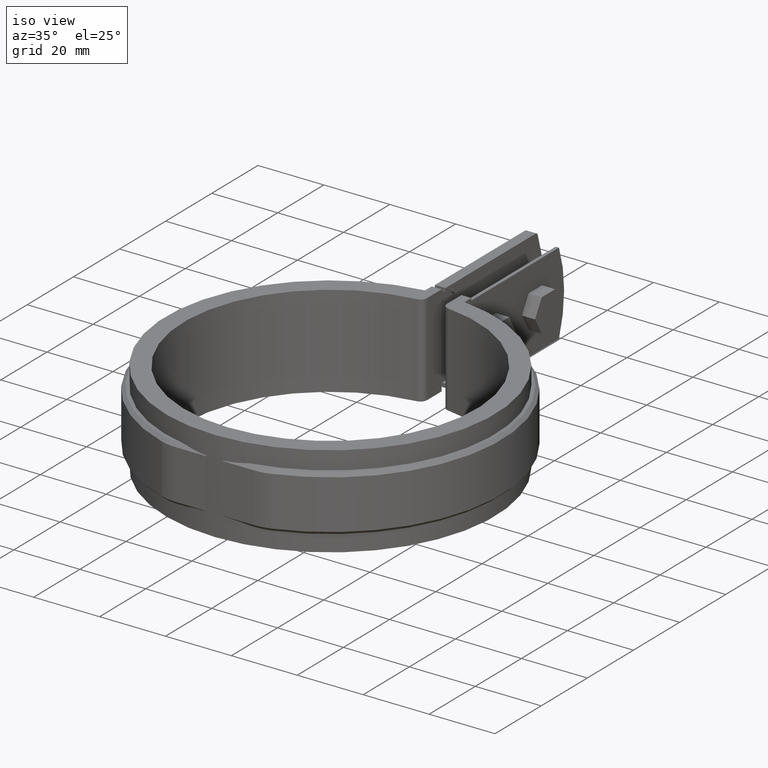
[diagram: clean part render]
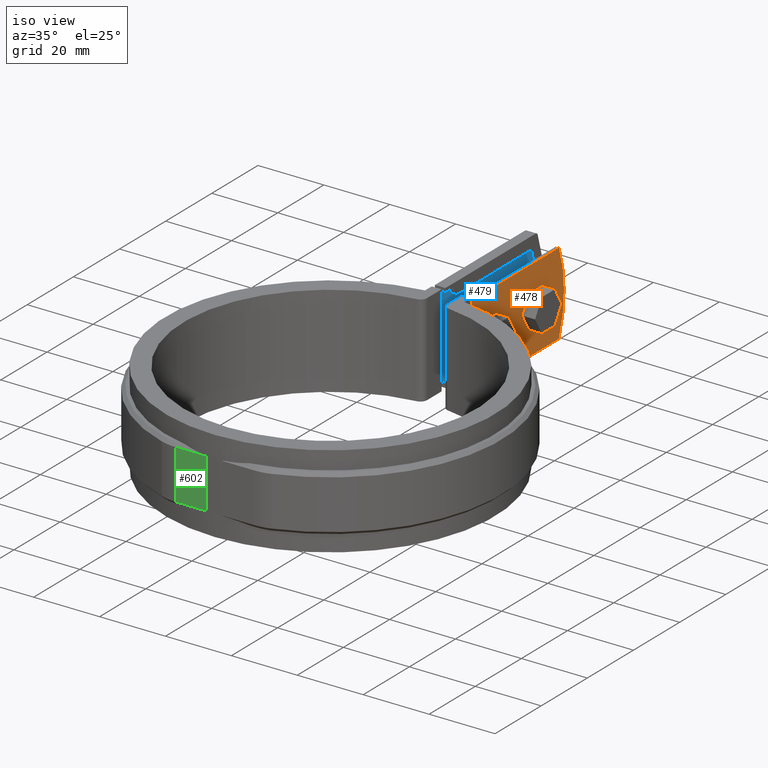
[diagram: same view with three faces highlighted in distinct colors, each labeled with its STEP entity id]
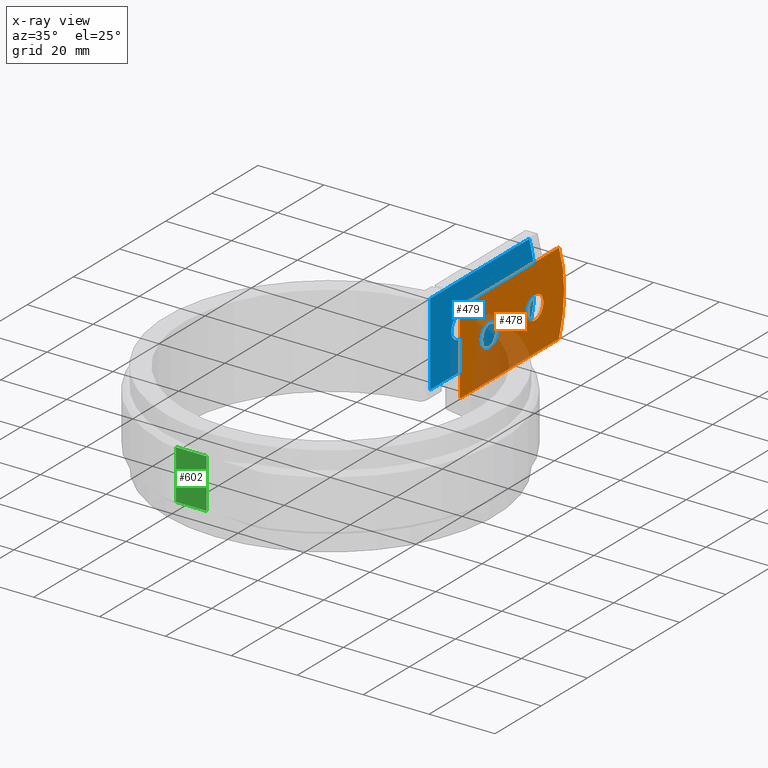
[diagram: x-ray of the same camera — body ghosted, the three highlighted faces saturated]
A machine part, iso view with three faces highlighted in distinct colors.
The next image is the same camera in x-ray (body ghosted, the three faces saturated) — at least one of them is partly hidden behind the body in this view.
Their STEP definitions:

[orange] entity #478 — the highlighted planar face has unit normal (1, 0, 0).
#478 = ADVANCED_FACE( '', ( #877, #878, #879 ), #880, .T. );
#877 = FACE_OUTER_BOUND( '', #1815, .T. );
#878 = FACE_BOUND( '', #1816, .T. );
#879 = FACE_BOUND( '', #1817, .T. );
#880 = PLANE( '', #1818 );
#1815 = EDGE_LOOP( '', ( #3569, #3570, #3571, #3572, #3573, #3574 ) );
#1816 = EDGE_LOOP( '', ( #3575 ) );
#1817 = EDGE_LOOP( '', ( #3576 ) );
#1818 = AXIS2_PLACEMENT_3D( '', #3577, #3578, #3579 );
#3569 = ORIENTED_EDGE( '', *, *, #7652, .F. );
#3570 = ORIENTED_EDGE( '', *, *, #7653, .F. );
#3571 = ORIENTED_EDGE( '', *, *, #7654, .T. );
#3572 = ORIENTED_EDGE( '', *, *, #7655, .T. );
#3573 = ORIENTED_EDGE( '', *, *, #7656, .F. );
#3574 = ORIENTED_EDGE( '', *, *, #7637, .F. );
#3575 = ORIENTED_EDGE( '', *, *, #7657, .T. );
#3576 = ORIENTED_EDGE( '', *, *, #7658, .T. );
#3577 = CARTESIAN_POINT( '', ( 5.00000000000000, 49.0025509540065, -12.5000000000000 ) );
#3578 = DIRECTION( '', ( 1.00000000000000, 6.16283340149655E-017, 0.000000000000000 ) );
#3579 = DIRECTION( '', ( 6.16283340149655E-017, -1.00000000000000, 0.000000000000000 ) );
#7637 = EDGE_CURVE( '', #8719, #8721, #8722, .T. );
#7652 = EDGE_CURVE( '', #8736, #8719, #8738, .T. );
#7653 = EDGE_CURVE( '', #8739, #8736, #8740, .T. );
#7654 = EDGE_CURVE( '', #8739, #8741, #8742, .T. );
#7655 = EDGE_CURVE( '', #8741, #8743, #8744, .T. );
#7656 = EDGE_CURVE( '', #8721, #8743, #8745, .T. );
#7657 = EDGE_CURVE( '', #8746, #8746, #8747, .F. );
#7658 = EDGE_CURVE( '', #8748, #8748, #8749, .F. );
#8719 = VERTEX_POINT( '', #11253 );
#8721 = VERTEX_POINT( '', #11270 );
#8722 = LINE( '', #11271, #11272 );
#8736 = VERTEX_POINT( '', #11361 );
#8738 = B_SPLINE_CURVE_WITH_KNOTS( '', 3, ( #11378, #11379, #11380, #11381, #11382, #11383, #11384, #11385 ), .UNSPECIFIED., .F., .F., ( 4, 2, 2, 4 ), ( 2.16840434497101E-019, 0.00168457269475964, 0.00252685904213946, 0.00336914538951927 ), .UNSPECIFIED. );
#8739 = VERTEX_POINT( '', #11386 );
#8740 = LINE( '', #11387, #11388 );
#8741 = VERTEX_POINT( '', #11389 );
#8742 = LINE( '', #11390, #11391 );
#8743 = VERTEX_POINT( '', #11392 );
#8744 = CIRCLE( '', #11393, 36.0000000000000 );
#8745 = LINE( '', #11394, #11395 );
#8746 = VERTEX_POINT( '', #11396 );
#8747 = CIRCLE( '', #11397, 3.50000000000000 );
#8748 = VERTEX_POINT( '', #11398 );
#8749 = CIRCLE( '', #11399, 3.50000000000000 );
#11253 = CARTESIAN_POINT( '', ( 5.00000000000000, 49.0025509540065, 1.67294878144052 ) );
#11270 = CARTESIAN_POINT( '', ( 5.00000000000000, 49.0025509540065, 12.5000000000000 ) );
#11271 = CARTESIAN_POINT( '', ( 5.00000000000000, 49.0025509540065, -12.5000000000000 ) );
#11272 = VECTOR( '', #14767, 1000.00000000000 );
#11361 = CARTESIAN_POINT( '', ( 5.00000000000000, 49.0025509540065, -1.67294878143787 ) );
#11378 = CARTESIAN_POINT( '', ( 5.00000000000000, 49.0025509540065, -1.67294878143787 ) );
#11379 = CARTESIAN_POINT( '', ( 5.00000000000000, 49.1629272890020, -1.12656002922780 ) );
#11380 = CARTESIAN_POINT( '', ( 4.99999999999999, 49.2451496729051, -0.570860486804298 ) );
#11381 = CARTESIAN_POINT( '', ( 4.99999999999999, 49.2459548465781, 0.277286121426488 ) );
#11382 = CARTESIAN_POINT( '', ( 5.00000000000000, 49.2249843333288, 0.562787795114989 ) );
#11383 = CARTESIAN_POINT( '', ( 5.00000000000001, 49.1433421235272, 1.12294091024393 ) );
#11384 = CARTESIAN_POINT( '', ( 4.99999999999991, 49.0827754315862, 1.39963069992494 ) );
#11385 = CARTESIAN_POINT( '', ( 4.99999999999991, 49.0025509540065, 1.67294878144042 ) );
#11386 = CARTESIAN_POINT( '', ( 5.00000000000000, 49.0025509540065, -12.5000000000000 ) );
#11387 = CARTESIAN_POINT( '', ( 5.00000000000000, 49.0025509540065, -12.5000000000000 ) );
#11388 = VECTOR( '', #14780, 1000.00000000000 );
#11389 = CARTESIAN_POINT( '', ( 5.00000000000000, 91.9562927180176, -12.5000000000000 ) );
#11390 = CARTESIAN_POINT( '', ( 5.00000000000000, 49.0025509540065, -12.5000000000000 ) );
#11391 = VECTOR( '', #14781, 1000.00000000000 );
#11392 = CARTESIAN_POINT( '', ( 5.00000000000000, 91.9562927180175, 12.5000000000000 ) );
#11393 = AXIS2_PLACEMENT_3D( '', #14782, #14783, #14784 );
#11394 = CARTESIAN_POINT( '', ( 5.00000000000000, 49.0025509540065, 12.5000000000000 ) );
#11395 = VECTOR( '', #14785, 1000.00000000000 );
#11396 = CARTESIAN_POINT( '', ( 5.00000000000000, 85.1961090692280, -1.73472347597681E-015 ) );
#11397 = AXIS2_PLACEMENT_3D( '', #14786, #14787, #14788 );
#11398 = CARTESIAN_POINT( '', ( 5.00000000000000, 65.1961090692280, -1.73472347597681E-015 ) );
#11399 = AXIS2_PLACEMENT_3D( '', #14789, #14790, #14791 );
#14767 = DIRECTION( '', ( 0.000000000000000, 0.000000000000000, 1.00000000000000 ) );
#14780 = DIRECTION( '', ( 0.000000000000000, 0.000000000000000, 1.00000000000000 ) );
#14781 = DIRECTION( '', ( -6.16283340149655E-017, 1.00000000000000, 0.000000000000000 ) );
#14782 = CARTESIAN_POINT( '', ( 5.00000000000000, 58.1961090692280, 0.000000000000000 ) );
#14783 = DIRECTION( '', ( 1.00000000000000, 6.16283340149655E-017, 0.000000000000000 ) );
#14784 = DIRECTION( '', ( -6.16283340149655E-017, 1.00000000000000, 0.000000000000000 ) );
#14785 = DIRECTION( '', ( -6.16283340149655E-017, 1.00000000000000, 0.000000000000000 ) );
#14786 = CARTESIAN_POINT( '', ( 5.00000000000000, 81.6961090692280, -1.73472347597681E-015 ) );
#14787 = DIRECTION( '', ( 1.00000000000000, 6.16283340149655E-017, 0.000000000000000 ) );
#14788 = DIRECTION( '', ( -6.16283340149655E-017, 1.00000000000000, 0.000000000000000 ) );
#14789 = CARTESIAN_POINT( '', ( 5.00000000000000, 61.6961090692280, -1.73472347597681E-015 ) );
#14790 = DIRECTION( '', ( 1.00000000000000, 6.16283340149655E-017, 0.000000000000000 ) );
#14791 = DIRECTION( '', ( -6.16283340149655E-017, 1.00000000000000, 0.000000000000000 ) );

[blue] entity #479 — the highlighted planar face has unit normal (1, -0, 0).
#479 = ADVANCED_FACE( '', ( #881, #882, #883 ), #884, .T. );
#881 = FACE_OUTER_BOUND( '', #1819, .T. );
#882 = FACE_BOUND( '', #1820, .T. );
#883 = FACE_BOUND( '', #1821, .T. );
#884 = PLANE( '', #1822 );
#1819 = EDGE_LOOP( '', ( #3580, #3581, #3582, #3583 ) );
#1820 = EDGE_LOOP( '', ( #3584 ) );
#1821 = EDGE_LOOP( '', ( #3585 ) );
#1822 = AXIS2_PLACEMENT_3D( '', #3586, #3587, #3588 );
#3580 = ORIENTED_EDGE( '', *, *, #7659, .F. );
#3581 = ORIENTED_EDGE( '', *, *, #7660, .F. );
#3582 = ORIENTED_EDGE( '', *, *, #7661, .T. );
#3583 = ORIENTED_EDGE( '', *, *, #7662, .T. );
#3584 = ORIENTED_EDGE( '', *, *, #7663, .T. );
#3585 = ORIENTED_EDGE( '', *, *, #7664, .T. );
#3586 = CARTESIAN_POINT( '', ( -4.00000000000000, 49.0025509540065, -12.5000000000000 ) );
#3587 = DIRECTION( '', ( 1.00000000000000, -6.16283340149655E-017, 0.000000000000000 ) );
#3588 = DIRECTION( '', ( -6.16283340149655E-017, -1.00000000000000, 0.000000000000000 ) );
#7659 = EDGE_CURVE( '', #8750, #8751, #8752, .T. );
#7660 = EDGE_CURVE( '', #8753, #8750, #8754, .T. );
#7661 = EDGE_CURVE( '', #8753, #8755, #8756, .T. );
#7662 = EDGE_CURVE( '', #8755, #8751, #8757, .T. );
#7663 = EDGE_CURVE( '', #8758, #8758, #8759, .F. );
#7664 = EDGE_CURVE( '', #8760, #8760, #8761, .F. );
#8750 = VERTEX_POINT( '', #11400 );
#8751 = VERTEX_POINT( '', #11401 );
#8752 = LINE( '', #11402, #11403 );
#8753 = VERTEX_POINT( '', #11404 );
#8754 = LINE( '', #11405, #11406 );
#8755 = VERTEX_POINT( '', #11407 );
#8756 = LINE( '', #11408, #11409 );
#8757 = CIRCLE( '', #11410, 36.0000000000000 );
#8758 = VERTEX_POINT( '', #11411 );
#8759 = CIRCLE( '', #11412, 3.50000000000000 );
#8760 = VERTEX_POINT( '', #11413 );
#8761 = CIRCLE( '', #11414, 3.50000000000000 );
#11400 = CARTESIAN_POINT( '', ( -4.00000000000000, 49.0025509540065, 12.5000000000000 ) );
#11401 = CARTESIAN_POINT( '', ( -3.99999999999999, 91.9562927180175, 12.5000000000000 ) );
#11402 = CARTESIAN_POINT( '', ( -4.00000000000000, 49.0025509540065, 12.5000000000000 ) );
#11403 = VECTOR( '', #14792, 1000.00000000000 );
#11404 = CARTESIAN_POINT( '', ( -4.00000000000000, 49.0025509540065, -12.5000000000000 ) );
#11405 = CARTESIAN_POINT( '', ( -4.00000000000000, 49.0025509540065, -12.5000000000000 ) );
#11406 = VECTOR( '', #14793, 1000.00000000000 );
#11407 = CARTESIAN_POINT( '', ( -3.99999999999999, 91.9562927180176, -12.5000000000000 ) );
#11408 = CARTESIAN_POINT( '', ( -4.00000000000000, 49.0025509540065, -12.5000000000000 ) );
#11409 = VECTOR( '', #14794, 1000.00000000000 );
#11410 = AXIS2_PLACEMENT_3D( '', #14795, #14796, #14797 );
#11411 = CARTESIAN_POINT( '', ( -4.00000000000000, 65.1961090692280, -1.73472347597681E-015 ) );
#11412 = AXIS2_PLACEMENT_3D( '', #14798, #14799, #14800 );
#11413 = CARTESIAN_POINT( '', ( -4.00000000000000, 85.1961090692280, -1.73472347597681E-015 ) );
#11414 = AXIS2_PLACEMENT_3D( '', #14801, #14802, #14803 );
#14792 = DIRECTION( '', ( 6.16283340149655E-017, 1.00000000000000, 0.000000000000000 ) );
#14793 = DIRECTION( '', ( 0.000000000000000, 0.000000000000000, 1.00000000000000 ) );
#14794 = DIRECTION( '', ( 6.16283340149655E-017, 1.00000000000000, 0.000000000000000 ) );
#14795 = CARTESIAN_POINT( '', ( -4.00000000000000, 58.1961090692280, 0.000000000000000 ) );
#14796 = DIRECTION( '', ( 1.00000000000000, -6.16283340149655E-017, 0.000000000000000 ) );
#14797 = DIRECTION( '', ( 6.16283340149655E-017, 1.00000000000000, 0.000000000000000 ) );
#14798 = CARTESIAN_POINT( '', ( -4.00000000000000, 61.6961090692280, -1.73472347597681E-015 ) );
#14799 = DIRECTION( '', ( 1.00000000000000, -6.16283340149655E-017, 0.000000000000000 ) );
#14800 = DIRECTION( '', ( 6.16283340149655E-017, 1.00000000000000, 0.000000000000000 ) );
#14801 = CARTESIAN_POINT( '', ( -4.00000000000000, 81.6961090692280, -1.73472347597681E-015 ) );
#14802 = DIRECTION( '', ( 1.00000000000000, -6.16283340149655E-017, 0.000000000000000 ) );
#14803 = DIRECTION( '', ( 6.16283340149655E-017, 1.00000000000000, 0.000000000000000 ) );

[green] entity #602 — the highlighted planar face has unit normal (0, -1, 0).
#602 = ADVANCED_FACE( '', ( #1136 ), #1137, .T. );
#1136 = FACE_OUTER_BOUND( '', #2504, .T. );
#1137 = PLANE( '', #2505 );
#2504 = EDGE_LOOP( '', ( #5628, #5629, #5630, #5631 ) );
#2505 = AXIS2_PLACEMENT_3D( '', #5632, #5633, #5634 );
#5628 = ORIENTED_EDGE( '', *, *, #7992, .T. );
#5629 = ORIENTED_EDGE( '', *, *, #7917, .T. );
#5630 = ORIENTED_EDGE( '', *, *, #7993, .F. );
#5631 = ORIENTED_EDGE( '', *, *, #7924, .T. );
#5632 = CARTESIAN_POINT( '', ( -11.8531641345255, -50.0500000000000, -8.50000000000000 ) );
#5633 = DIRECTION( '', ( 0.000000000000000, -1.00000000000000, 0.000000000000000 ) );
#5634 = DIRECTION( '', ( -1.00000000000000, 0.000000000000000, 0.000000000000000 ) );
#7917 = EDGE_CURVE( '', #9191, #9189, #9192, .T. );
#7924 = EDGE_CURVE( '', #9185, #9202, #9204, .T. );
#7992 = EDGE_CURVE( '', #9202, #9191, #9298, .T. );
#7993 = EDGE_CURVE( '', #9185, #9189, #9299, .T. );
#9185 = VERTEX_POINT( '', #13034 );
#9189 = VERTEX_POINT( '', #13039 );
#9191 = VERTEX_POINT( '', #13042 );
#9192 = LINE( '', #13043, #13044 );
#9202 = VERTEX_POINT( '', #13057 );
#9204 = LINE( '', #13060, #13061 );
#9298 = LINE( '', #13206, #13207 );
#9299 = LINE( '', #13208, #13209 );
#13034 = CARTESIAN_POINT( '', ( -11.8531641345254, -50.0500000000000, -7.50000000000000 ) );
#13039 = CARTESIAN_POINT( '', ( -11.8531641345254, -50.0500000000000, 7.50000000000000 ) );
#13042 = CARTESIAN_POINT( '', ( -2.50000000000002, -50.0500000000000, 7.50000000000000 ) );
#13043 = CARTESIAN_POINT( '', ( -11.8531641345255, -50.0500000000000, 7.50000000000000 ) );
#13044 = VECTOR( '', #15038, 1000.00000000000 );
#13057 = CARTESIAN_POINT( '', ( -2.50000000000001, -50.0500000000000, -7.50000000000000 ) );
#13060 = CARTESIAN_POINT( '', ( -2.50000000000002, -50.0500000000000, -7.50000000000000 ) );
#13061 = VECTOR( '', #15049, 1000.00000000000 );
#13206 = CARTESIAN_POINT( '', ( -2.50000000000002, -50.0500000000000, -8.50000000000000 ) );
#13207 = VECTOR( '', #15155, 1000.00000000000 );
#13208 = CARTESIAN_POINT( '', ( -11.8531641345254, -50.0500000000000, -8.50000000000000 ) );
#13209 = VECTOR( '', #15156, 1000.00000000000 );
#15038 = DIRECTION( '', ( -1.00000000000000, 0.000000000000000, 0.000000000000000 ) );
#15049 = DIRECTION( '', ( 1.00000000000000, 0.000000000000000, 0.000000000000000 ) );
#15155 = DIRECTION( '', ( 0.000000000000000, 0.000000000000000, 1.00000000000000 ) );
#15156 = DIRECTION( '', ( 0.000000000000000, 0.000000000000000, 1.00000000000000 ) );